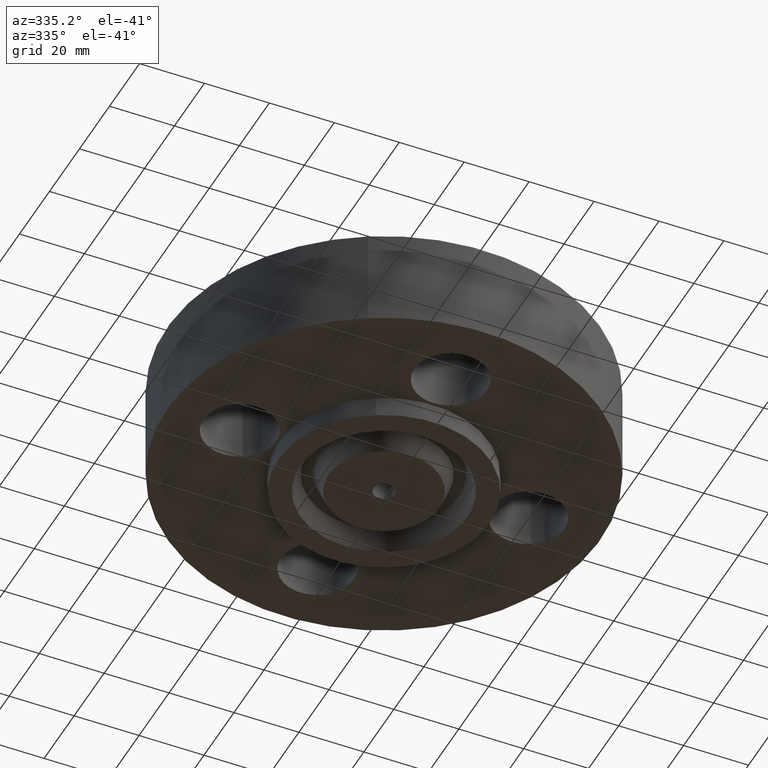
[diagram: clean part render]
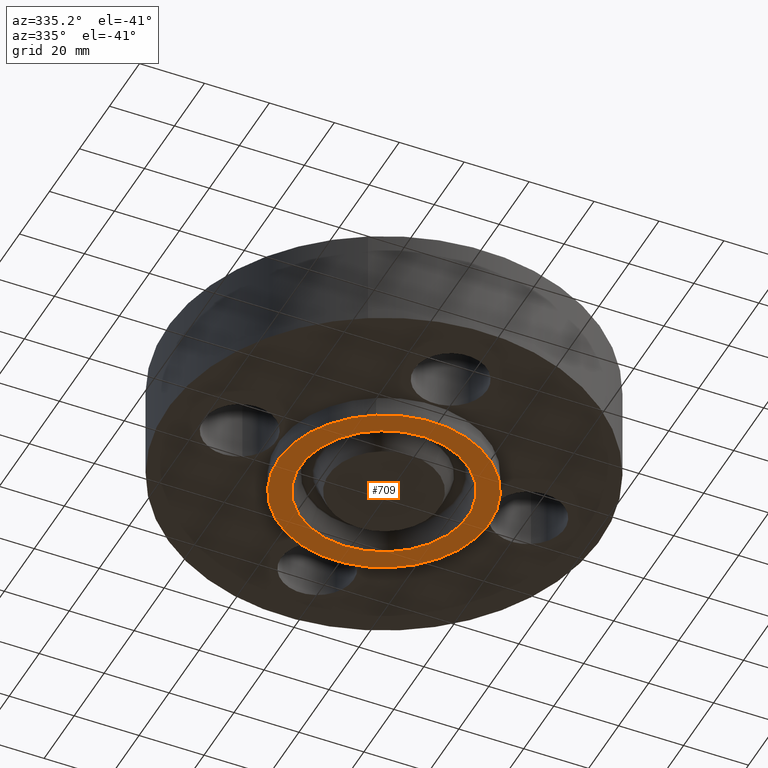
[diagram: same view with one face highlighted and labeled with its STEP entity id]
A machine part, auxiliary view. The second image highlights one B-rep face of the part: STEP entity #709.
In plain terms, the highlighted planar face has unit normal (0, 0, -1).
Its self-contained STEP definition (entity closure, byte-faithful):
#431=AXIS2_PLACEMENT_3D('Circle Axis2P3D',#429,#430,$) ;
#466=AXIS2_PLACEMENT_3D('Circle Axis2P3D',#464,#465,$) ;
#685=AXIS2_PLACEMENT_3D('Plane Axis2P3D',#682,#683,#684) ;
#693=AXIS2_PLACEMENT_3D('Circle Axis2P3D',#691,#692,$) ;
#702=AXIS2_PLACEMENT_3D('Circle Axis2P3D',#700,#701,$) ;
#429=CARTESIAN_POINT('Axis2P3D Location',(0.,0.,-0.250000000001)) ;
#433=CARTESIAN_POINT('Vertex',(-0.614383827724,-1.12462205307,-0.250000000001)) ;
#435=CARTESIAN_POINT('Vertex',(0.614383827724,1.12462205307,-0.250000000001)) ;
#464=CARTESIAN_POINT('Axis2P3D Location',(0.,0.,-0.250000000001)) ;
#682=CARTESIAN_POINT('Axis2P3D Location',(0.,0.126000000001,-0.250000000001)) ;
#691=CARTESIAN_POINT('Axis2P3D Location',(1.04902962957E-016,2.62257407392E-016,-0.250000000001)) ;
#695=CARTESIAN_POINT('Vertex',(0.487096347224,-0.891623882884,-0.250000000001)) ;
#697=CARTESIAN_POINT('Vertex',(-0.487096347224,0.891623882884,-0.250000000001)) ;
#700=CARTESIAN_POINT('Axis2P3D Location',(-3.49676543189E-017,1.22386790116E-016,-0.250000000001)) ;
#430=DIRECTION('Axis2P3D Direction',(0.,0.,-0.0393700787402)) ;
#465=DIRECTION('Axis2P3D Direction',(0.,0.,-0.0393700787402)) ;
#683=DIRECTION('Axis2P3D Direction',(0.,0.,-0.0393700787402)) ;
#684=DIRECTION('Axis2P3D XDirection',(0.0393700787402,0.,0.)) ;
#692=DIRECTION('Axis2P3D Direction',(0.,0.,-0.0393700787402)) ;
#701=DIRECTION('Axis2P3D Direction',(0.,0.,-0.0393700787402)) ;
#688=ORIENTED_EDGE('',*,*,#437,.T.) ;
#689=ORIENTED_EDGE('',*,*,#468,.T.) ;
#706=ORIENTED_EDGE('',*,*,#699,.F.) ;
#707=ORIENTED_EDGE('',*,*,#704,.F.) ;
#708=FACE_BOUND('',#705,.T.) ;
#709=ADVANCED_FACE('PartBody',(#690,#708),#686,.T.) ;
#432=CIRCLE('generated circle',#431,1.28150000001) ;
#467=CIRCLE('generated circle',#466,1.28150000001) ;
#694=CIRCLE('generated circle',#693,1.016) ;
#703=CIRCLE('generated circle',#702,1.016) ;
#437=EDGE_CURVE('',#434,#436,#432,.T.) ;
#468=EDGE_CURVE('',#436,#434,#467,.T.) ;
#699=EDGE_CURVE('',#696,#698,#694,.T.) ;
#704=EDGE_CURVE('',#698,#696,#703,.T.) ;
#687=EDGE_LOOP('',(#688,#689)) ;
#705=EDGE_LOOP('',(#706,#707)) ;
#690=FACE_OUTER_BOUND('',#687,.T.) ;
#686=PLANE('',#685) ;
#434=VERTEX_POINT('',#433) ;
#436=VERTEX_POINT('',#435) ;
#696=VERTEX_POINT('',#695) ;
#698=VERTEX_POINT('',#697) ;